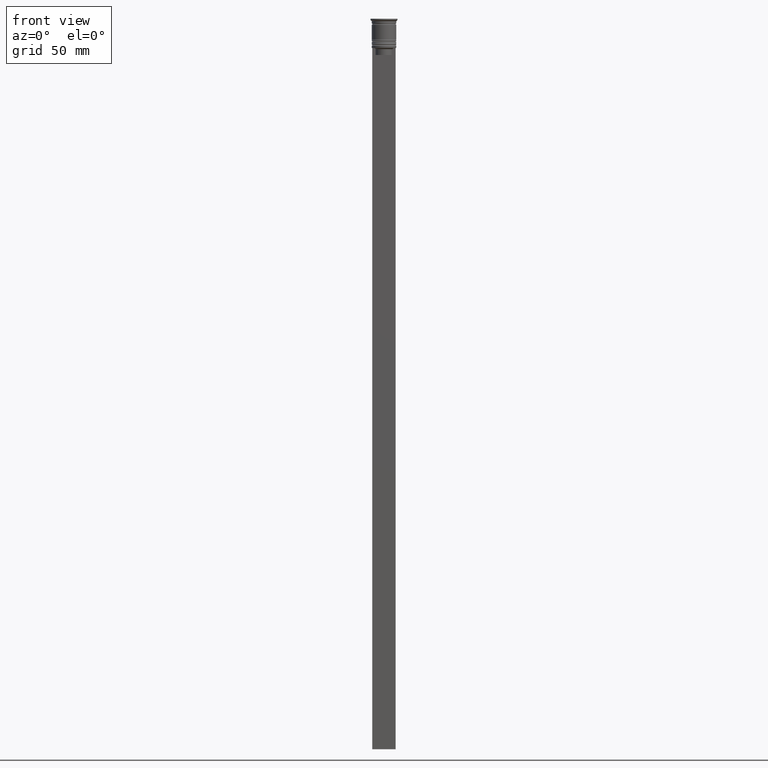
[diagram: clean part render]
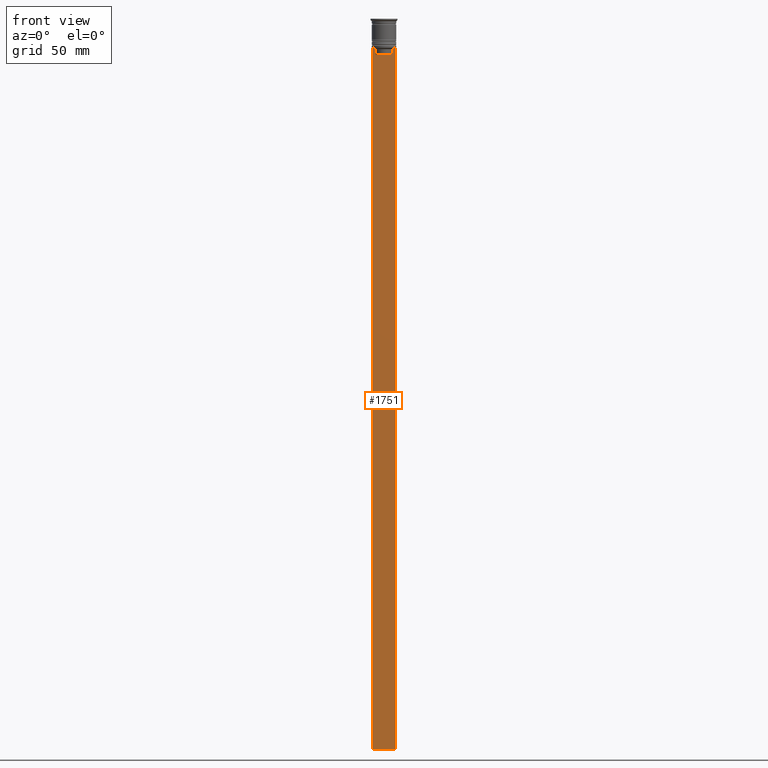
[diagram: same view with one face highlighted and labeled with its STEP entity id]
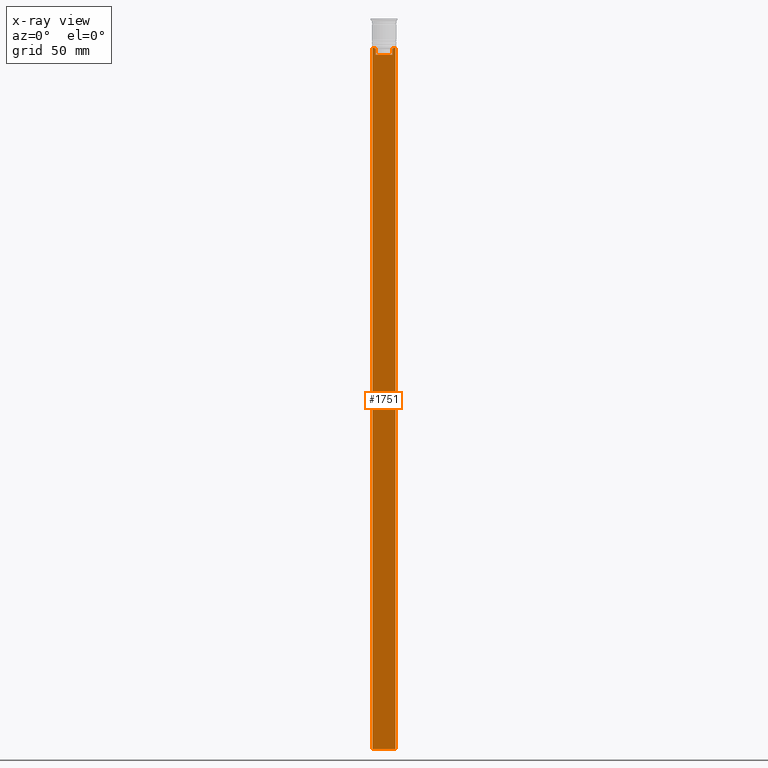
[diagram: x-ray of the same camera — body ghosted, the highlighted face saturated]
A machine part, front view. The second image highlights one B-rep face of the part: STEP entity #1751.
The next image is the same camera in x-ray: the body ghosted, the highlighted face saturated — about 0% of this face is hidden behind the body in this view.
In plain terms, the highlighted planar face has unit normal (0, -1, -0).
Its self-contained STEP definition (entity closure, byte-faithful):
#37 = ORIENTED_EDGE ( 'NONE', *, *, #1274, .F. ) ;
#51 = DIRECTION ( 'NONE',  ( 1.000000000000000000, 0.000000000000000000, 0.000000000000000000 ) ) ;
#91 = VECTOR ( 'NONE', #411, 1000.000000000000000 ) ;
#112 = ORIENTED_EDGE ( 'NONE', *, *, #2011, .F. ) ;
#149 = CARTESIAN_POINT ( 'NONE',  ( 3.615591237958188486, -0.5000000000000008882, -15.50000000000000000 ) ) ;
#155 = VERTEX_POINT ( 'NONE', #506 ) ;
#178 = VERTEX_POINT ( 'NONE', #1024 ) ;
#184 = CARTESIAN_POINT ( 'NONE',  ( -3.951794205566887985, -0.5000000000000008882, -12.66675159355373914 ) ) ;
#191 = DIRECTION ( 'NONE',  ( 0.000000000000000000, 0.000000000000000000, -1.000000000000000000 ) ) ;
#198 = FACE_OUTER_BOUND ( 'NONE', #854, .T. ) ;
#227 = CARTESIAN_POINT ( 'NONE',  ( 5.000000000000000000, -0.5000000000000008882, -312.5000000000000000 ) ) ;
#230 = CARTESIAN_POINT ( 'NONE',  ( 3.615591237958188042, -0.5000000000000008882, 0.000000000000000000 ) ) ;
#282 = VECTOR ( 'NONE', #1025, 1000.000000000000000 ) ;
#309 = CARTESIAN_POINT ( 'NONE',  ( -4.119769411022908834, -0.5000000000000008882, -12.50000000000000000 ) ) ;
#370 = ORIENTED_EDGE ( 'NONE', *, *, #498, .F. ) ;
#376 = CARTESIAN_POINT ( 'NONE',  ( 5.000000000000000000, -0.5000000000000008882, -2.450124378879110054 ) ) ;
#388 = LINE ( 'NONE', #376, #282 ) ;
#399 = VECTOR ( 'NONE', #1067, 1000.000000000000000 ) ;
#411 = DIRECTION ( 'NONE',  ( 0.000000000000000000, 0.000000000000000000, -1.000000000000000000 ) ) ;
#450 = VERTEX_POINT ( 'NONE', #1132 ) ;
#494 = EDGE_CURVE ( 'NONE', #178, #1729, #1306, .T. ) ;
#498 = EDGE_CURVE ( 'NONE', #2267, #155, #2026, .T. ) ;
#502 = CARTESIAN_POINT ( 'NONE',  ( -4.119769411022908834, -0.5000000000000008882, -12.50000000000000000 ) ) ;
#506 = CARTESIAN_POINT ( 'NONE',  ( 3.615591237958188042, -0.5000000000000008882, -13.00000000000000178 ) ) ;
#541 = LINE ( 'NONE', #737, #1998 ) ;
#613 = LINE ( 'NONE', #227, #2154 ) ;
#678 = B_SPLINE_CURVE_WITH_KNOTS ( 'NONE', 3,
 ( #952, #1655, #1330, #1865 ),
 .UNSPECIFIED., .F., .F.,
 ( 4, 4 ),
 ( 0.01745179617248909451, 0.01816207215777257411 ),
 .UNSPECIFIED. ) ;
#716 = ORIENTED_EDGE ( 'NONE', *, *, #494, .F. ) ;
#737 = CARTESIAN_POINT ( 'NONE',  ( -4.999999999999999112, -0.5000000000000008882, -2.450124378879110054 ) ) ;
#760 = ORIENTED_EDGE ( 'NONE', *, *, #1118, .T. ) ;
#762 = VERTEX_POINT ( 'NONE', #1632 ) ;
#765 = DIRECTION ( 'NONE',  ( -1.000000000000000000, 0.000000000000000000, 0.000000000000000000 ) ) ;
#770 = CARTESIAN_POINT ( 'NONE',  ( -3.615591237958188042, -0.5000000000000008882, 0.000000000000000000 ) ) ;
#854 = EDGE_LOOP ( 'NONE', ( #2034, #1209, #760, #2175, #112, #716, #1550, #370, #1167, #37 ) ) ;
#867 = LINE ( 'NONE', #1420, #399 ) ;
#872 = CARTESIAN_POINT ( 'NONE',  ( -3.615591237958188042, -0.5000000000000008882, -13.00000000000000178 ) ) ;
#895 = EDGE_CURVE ( 'NONE', #1313, #1054, #1518, .T. ) ;
#907 = EDGE_CURVE ( 'NONE', #762, #450, #613, .T. ) ;
#952 = CARTESIAN_POINT ( 'NONE',  ( 3.615591237958188042, -0.5000000000000008882, -13.00000000000000178 ) ) ;
#1024 = CARTESIAN_POINT ( 'NONE',  ( 4.119769411022908834, -0.5000000000000008882, -12.50000000000000000 ) ) ;
#1025 = DIRECTION ( 'NONE',  ( 0.000000000000000000, 0.000000000000000000, -1.000000000000000000 ) ) ;
#1054 = VERTEX_POINT ( 'NONE', #309 ) ;
#1067 = DIRECTION ( 'NONE',  ( 1.000000000000000000, 0.000000000000000000, 0.000000000000000000 ) ) ;
#1084 = VECTOR ( 'NONE', #2206, 1000.000000000000000 ) ;
#1097 = EDGE_CURVE ( 'NONE', #1054, #2281, #1750, .T. ) ;
#1110 = LINE ( 'NONE', #770, #91 ) ;
#1118 = EDGE_CURVE ( 'NONE', #1313, #450, #541, .T. ) ;
#1132 = CARTESIAN_POINT ( 'NONE',  ( -4.999999999999999112, -0.5000000000000008882, -312.5000000000000000 ) ) ;
#1167 = ORIENTED_EDGE ( 'NONE', *, *, #1673, .F. ) ;
#1209 = ORIENTED_EDGE ( 'NONE', *, *, #895, .F. ) ;
#1256 = EDGE_CURVE ( 'NONE', #155, #178, #678, .T. ) ;
#1274 = EDGE_CURVE ( 'NONE', #2281, #1366, #1110, .T. ) ;
#1306 = LINE ( 'NONE', #1891, #2299 ) ;
#1309 = DIRECTION ( 'NONE',  ( 0.000000000000000000, -1.000000000000000000, -0.000000000000000000 ) ) ;
#1313 = VERTEX_POINT ( 'NONE', #2047 ) ;
#1330 = CARTESIAN_POINT ( 'NONE',  ( 3.951794168112528816, -0.5000000000000008882, -12.66675163073525745 ) ) ;
#1334 = PLANE ( 'NONE',  #1662 ) ;
#1366 = VERTEX_POINT ( 'NONE', #1678 ) ;
#1420 = CARTESIAN_POINT ( 'NONE',  ( 0.000000000000000000, -0.5000000000000008882, -15.50000000000000000 ) ) ;
#1493 = CARTESIAN_POINT ( 'NONE',  ( 5.000000000000000000, -0.5000000000000008882, -2.450124378879110054 ) ) ;
#1518 = LINE ( 'NONE', #1866, #2112 ) ;
#1550 = ORIENTED_EDGE ( 'NONE', *, *, #1256, .F. ) ;
#1632 = CARTESIAN_POINT ( 'NONE',  ( 5.000000000000000000, -0.5000000000000008882, -312.5000000000000000 ) ) ;
#1655 = CARTESIAN_POINT ( 'NONE',  ( 3.783746406711540278, -0.5000000000000008882, -12.83343003979123509 ) ) ;
#1662 = AXIS2_PLACEMENT_3D ( 'NONE', #1493, #1309, #191 ) ;
#1673 = EDGE_CURVE ( 'NONE', #1366, #2267, #867, .T. ) ;
#1675 = DIRECTION ( 'NONE',  ( 1.000000000000000000, 0.000000000000000000, 0.000000000000000000 ) ) ;
#1678 = CARTESIAN_POINT ( 'NONE',  ( -3.615591237958188486, -0.5000000000000008882, -15.50000000000000000 ) ) ;
#1729 = VERTEX_POINT ( 'NONE', #2031 ) ;
#1750 = B_SPLINE_CURVE_WITH_KNOTS ( 'NONE', 3,
 ( #502, #184, #2316, #1956 ),
 .UNSPECIFIED., .F., .F.,
 ( 4, 4 ),
 ( 0.007067514914986629433, 0.007777582239375527978 ),
 .UNSPECIFIED. ) ;
#1751 = ADVANCED_FACE ( 'NONE', ( #198 ), #1334, .T. ) ;
#1813 = DIRECTION ( 'NONE',  ( 0.000000000000000000, 0.000000000000000000, -1.000000000000000000 ) ) ;
#1865 = CARTESIAN_POINT ( 'NONE',  ( 4.119769411022908834, -0.5000000000000008882, -12.50000000000000000 ) ) ;
#1866 = CARTESIAN_POINT ( 'NONE',  ( 5.000000000000000000, -0.5000000000000008882, -12.50000000000000000 ) ) ;
#1891 = CARTESIAN_POINT ( 'NONE',  ( 5.000000000000000000, -0.5000000000000008882, -12.50000000000000000 ) ) ;
#1956 = CARTESIAN_POINT ( 'NONE',  ( -3.615591237958188042, -0.5000000000000008882, -13.00000000000000178 ) ) ;
#1998 = VECTOR ( 'NONE', #1813, 1000.000000000000000 ) ;
#2011 = EDGE_CURVE ( 'NONE', #1729, #762, #388, .T. ) ;
#2026 = LINE ( 'NONE', #230, #1084 ) ;
#2031 = CARTESIAN_POINT ( 'NONE',  ( 5.000000000000000000, -0.5000000000000008882, -12.50000000000000000 ) ) ;
#2034 = ORIENTED_EDGE ( 'NONE', *, *, #1097, .F. ) ;
#2047 = CARTESIAN_POINT ( 'NONE',  ( -4.999999999999999112, -0.5000000000000008882, -12.50000000000000000 ) ) ;
#2112 = VECTOR ( 'NONE', #51, 1000.000000000000000 ) ;
#2154 = VECTOR ( 'NONE', #765, 1000.000000000000000 ) ;
#2175 = ORIENTED_EDGE ( 'NONE', *, *, #907, .F. ) ;
#2206 = DIRECTION ( 'NONE',  ( -0.000000000000000000, -0.000000000000000000, 1.000000000000000000 ) ) ;
#2267 = VERTEX_POINT ( 'NONE', #149 ) ;
#2281 = VERTEX_POINT ( 'NONE', #872 ) ;
#2299 = VECTOR ( 'NONE', #1675, 1000.000000000000000 ) ;
#2316 = CARTESIAN_POINT ( 'NONE',  ( -3.783746449387932476, -0.5000000000000008882, -12.83342999751715752 ) ) ;